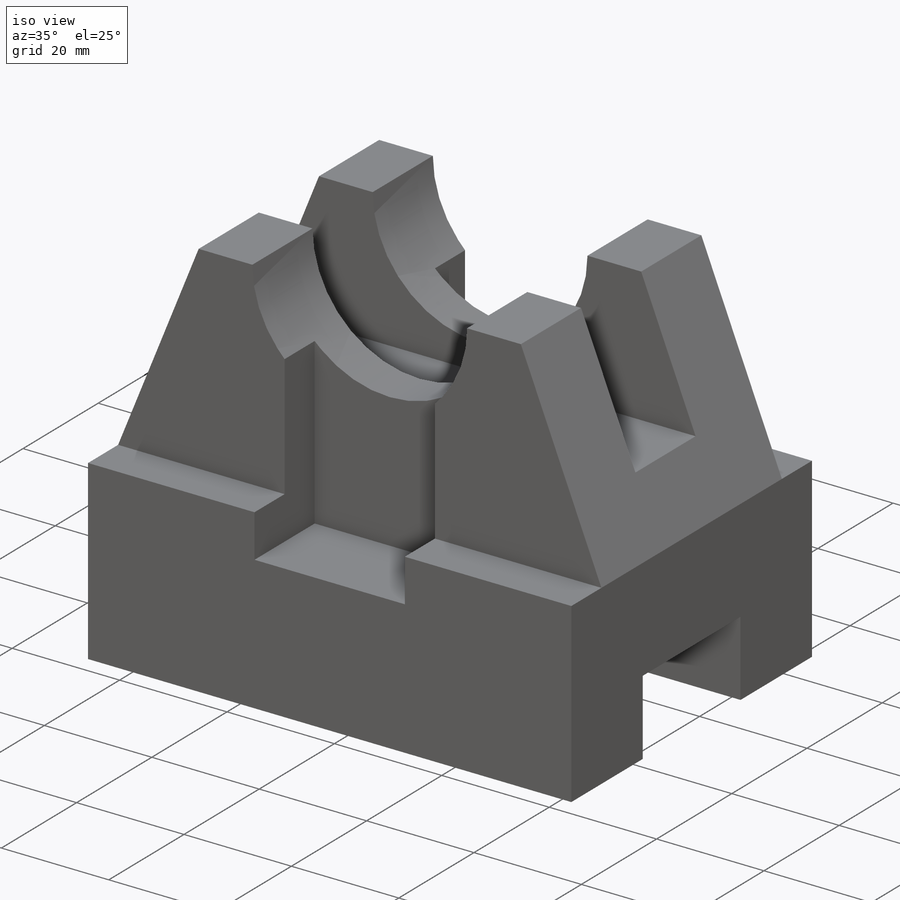
[diagram: iso view]
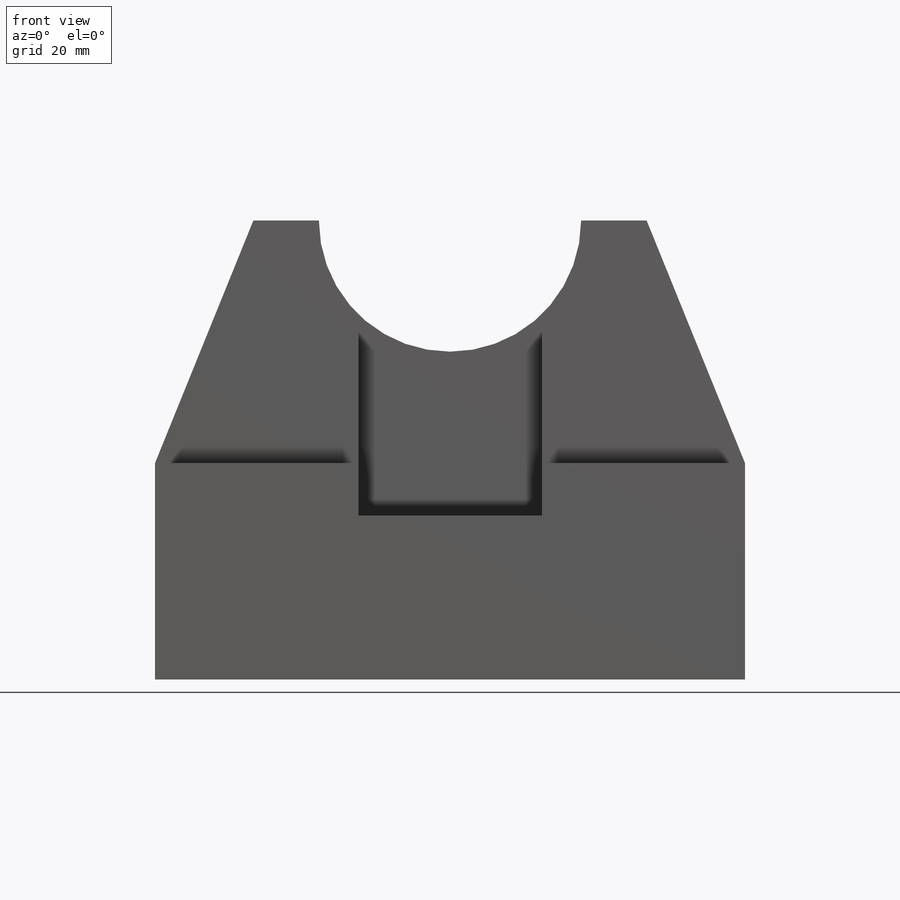
[diagram: front view]
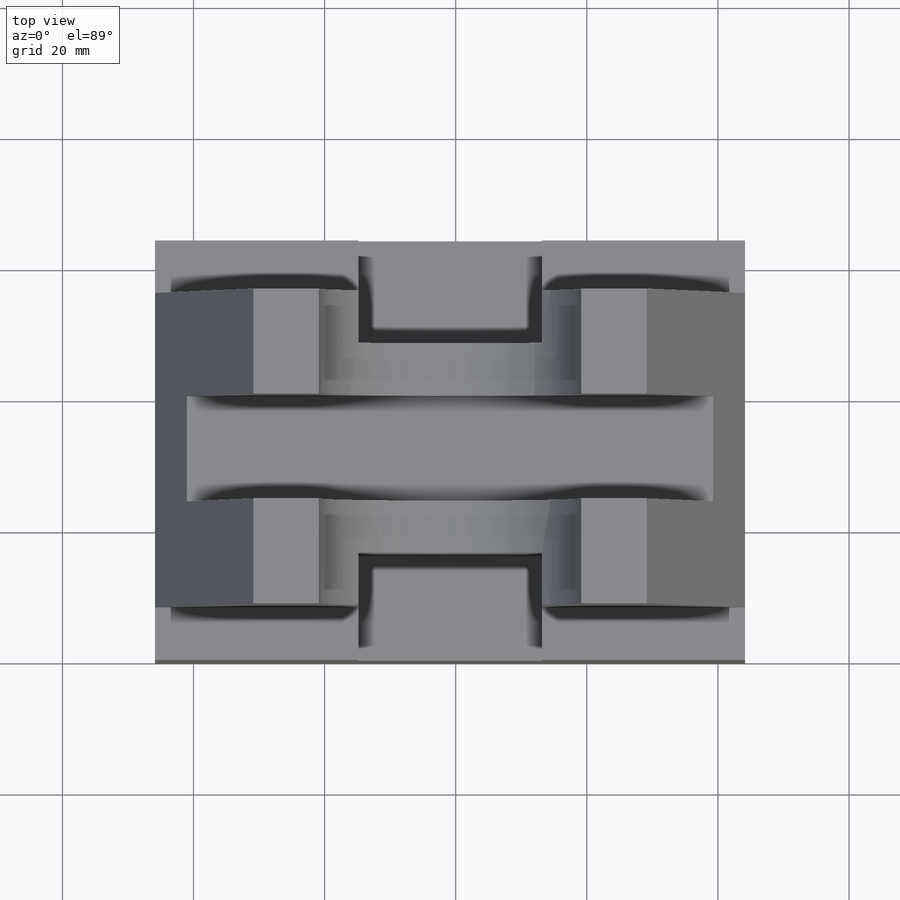
[diagram: top view]
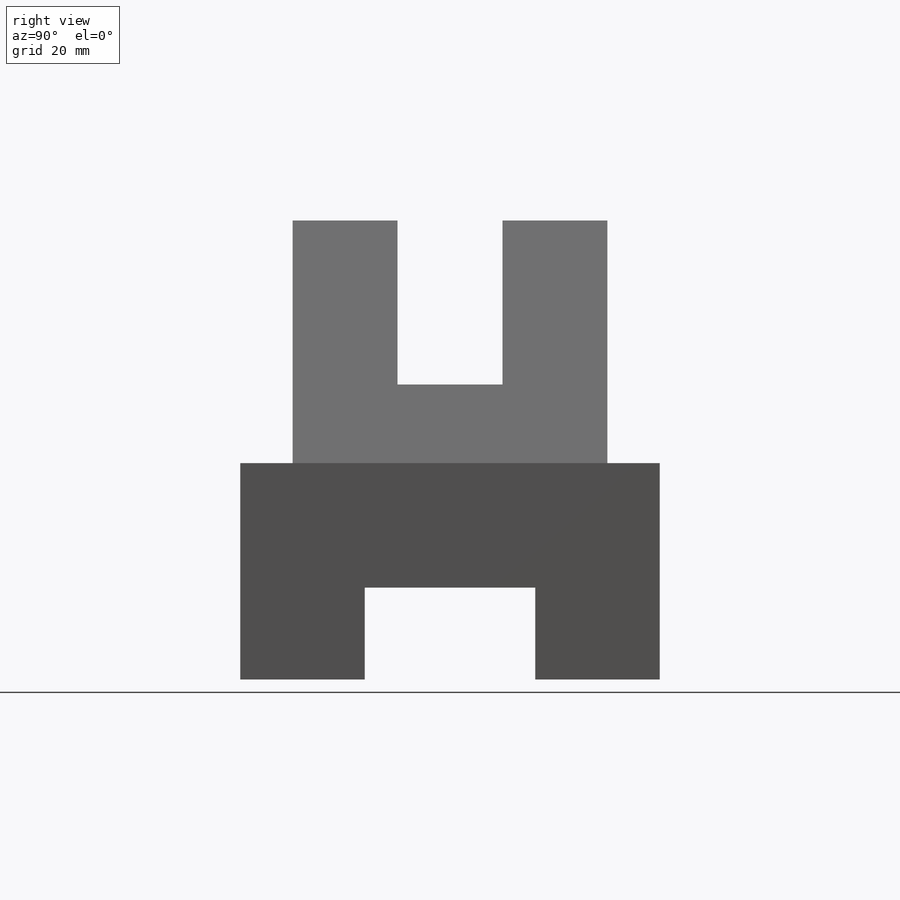
[diagram: right view]
SOLIDWORKS PART (.sldprt)
format: sldprt  version: not decoded by parser v0  size: 248,832 bytes
history: native  units: mm
features: sketch x7, cut_extrude x6, plane x4, mirror x3, material x1, extrude x1 (+13 scaffold rows collapsed)
feature tree (35):
  scaffold x13  (default folders/planes/origin — collapsed)
  material  "Material <not specified>"
  sketch  "Sketch1"  dims[D1=90.0mm D2=64.0mm]
  extrude  "Boss-Extrude1"  Depth=70mm
  sketch  "Sketch2"  dims[D1=26.0mm D2=14.0mm D3=19.0mm D4=19.0mm]
  cut_extrude  "Cut-Extrude1"  Depth=90mm
  sketch  "Sketch3"  dims[D1=8.0mm D2=37.0mm]
  cut_extrude  "Cut-Extrude3"  [1 undecoded]
  plane  "Plane1"
  mirror  "Mirror2"
  sketch  "Sketch7"  dims[D1=~12.93403mm]
  cut_extrude  "Cut-Extrude4"  Depth=48mm
  sketch  "Sketch8"  dims[D1=15.0mm]
  cut_extrude  "Cut-Extrude5"  [1 undecoded]
  plane  "Plane2"
  mirror  "Mirror3"
  plane  "Plane3"
  sketch  "Sketch11"  dims[D1=16.0mm D2=16.0mm D3=90.0mm]
  cut_extrude  "Cut-Extrude7"  Depth=25mm
  plane  "Plane6"
  sketch  "Sketch13"  dims[D1=31.0mm D2=31.0mm D3=16.0mm D4=28.0mm]
  cut_extrude  "Cut-Extrude8"  Depth=45mm
  mirror  "Mirror4"
decode coverage: 12 of 17 modeling features carry decoded parameters
note: ~ marks probable driven/reference dimensions
note: 2 parameter values undecoded
note: suppression state not decoded; provenance and decode notes live in map.json
